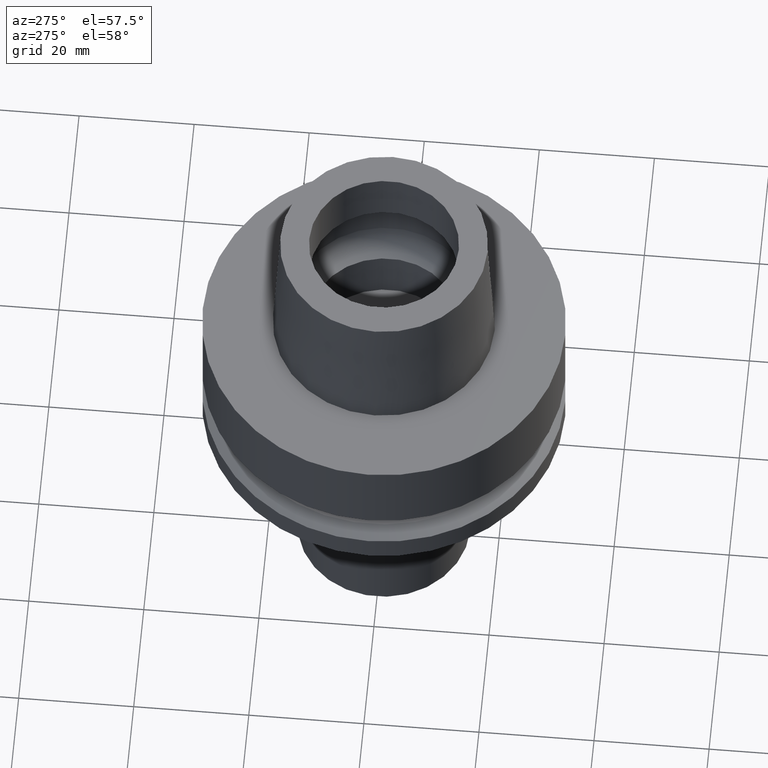
[diagram: clean part render]
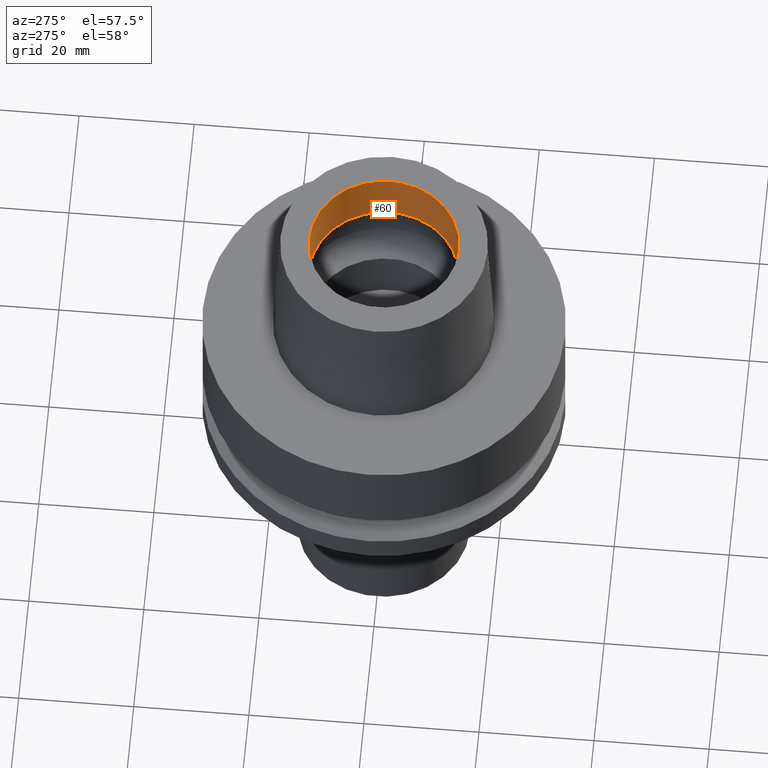
[diagram: same view with one face highlighted and labeled with its STEP entity id]
A machine part, auxiliary view. The second image highlights one B-rep face of the part: STEP entity #60.
In plain terms, the highlighted cylindrical surface (partial cylindrical patch) has radius 13 mm, axis along (0, 0, 1).
Its self-contained STEP definition (entity closure, byte-faithful):
#60 = ADVANCED_FACE ( 'NONE', ( #1481 ), #2337, .F. ) ;
#274 = AXIS2_PLACEMENT_3D ( 'NONE', #986, #1831, #2321 ) ;
#357 = VERTEX_POINT ( 'NONE', #1572 ) ;
#363 = DIRECTION ( 'NONE',  ( 0.0000000000000000000, 0.0000000000000000000, 1.000000000000000000 ) ) ;
#499 = CARTESIAN_POINT ( 'NONE',  ( 0.0000000000000000000, -13.00000000000000000, 14.99602540378000093 ) ) ;
#519 = DIRECTION ( 'NONE',  ( 0.0000000000000000000, 9.659541928455000240E-14, 1.000000000000000000 ) ) ;
#573 = VECTOR ( 'NONE', #2594, 1000.000000000000000 ) ;
#712 = AXIS2_PLACEMENT_3D ( 'NONE', #1941, #1687, #1700 ) ;
#761 = EDGE_CURVE ( 'NONE', #2257, #2307, #1383, .T. ) ;
#881 = CARTESIAN_POINT ( 'NONE',  ( 0.0000000000000000000, 13.00000000000000000, 14.99602540378000093 ) ) ;
#986 = CARTESIAN_POINT ( 'NONE',  ( 0.0000000000000000000, 0.0000000000000000000, 14.99602540378000093 ) ) ;
#1068 = EDGE_CURVE ( 'NONE', #357, #2307, #1295, .T. ) ;
#1118 = VERTEX_POINT ( 'NONE', #499 ) ;
#1140 = LINE ( 'NONE', #2011, #1720 ) ;
#1295 = LINE ( 'NONE', #881, #573 ) ;
#1383 = CIRCLE ( 'NONE', #2423, 13.00000000000000000 ) ;
#1413 = CARTESIAN_POINT ( 'NONE',  ( 0.0000000000000000000, -13.00000000000000000, 25.00000000000000000 ) ) ;
#1481 = FACE_OUTER_BOUND ( 'NONE', #1799, .T. ) ;
#1572 = CARTESIAN_POINT ( 'NONE',  ( 0.0000000000000000000, 13.00000000000000000, 14.99602540378000093 ) ) ;
#1687 = DIRECTION ( 'NONE',  ( 0.0000000000000000000, 0.0000000000000000000, 1.000000000000000000 ) ) ;
#1700 = DIRECTION ( 'NONE',  ( 0.0000000000000000000, 1.000000000000000000, 0.0000000000000000000 ) ) ;
#1720 = VECTOR ( 'NONE', #519, 1000.000000000000000 ) ;
#1799 = EDGE_LOOP ( 'NONE', ( #2509, #2775, #2741, #2172 ) ) ;
#1831 = DIRECTION ( 'NONE',  ( 0.0000000000000000000, 0.0000000000000000000, -1.000000000000000000 ) ) ;
#1941 = CARTESIAN_POINT ( 'NONE',  ( 0.0000000000000000000, 0.0000000000000000000, -62.46499999999999631 ) ) ;
#2011 = CARTESIAN_POINT ( 'NONE',  ( 0.0000000000000000000, -13.00000000000000000, 14.99602540378000093 ) ) ;
#2172 = ORIENTED_EDGE ( 'NONE', *, *, #1068, .F. ) ;
#2257 = VERTEX_POINT ( 'NONE', #1413 ) ;
#2279 = CARTESIAN_POINT ( 'NONE',  ( 0.0000000000000000000, 13.00000000000000000, 25.00000000000000000 ) ) ;
#2307 = VERTEX_POINT ( 'NONE', #2279 ) ;
#2321 = DIRECTION ( 'NONE',  ( 0.0000000000000000000, 1.000000000000000000, 0.0000000000000000000 ) ) ;
#2337 = CYLINDRICAL_SURFACE ( 'NONE', #712, 13.00000000000000000 ) ;
#2394 = EDGE_CURVE ( 'NONE', #357, #1118, #2485, .T. ) ;
#2423 = AXIS2_PLACEMENT_3D ( 'NONE', #2761, #363, #2778 ) ;
#2485 = CIRCLE ( 'NONE', #274, 13.00000000000000000 ) ;
#2509 = ORIENTED_EDGE ( 'NONE', *, *, #2394, .T. ) ;
#2594 = DIRECTION ( 'NONE',  ( 0.0000000000000000000, -9.659541928455000240E-14, 1.000000000000000000 ) ) ;
#2741 = ORIENTED_EDGE ( 'NONE', *, *, #761, .T. ) ;
#2761 = CARTESIAN_POINT ( 'NONE',  ( 0.0000000000000000000, 0.0000000000000000000, 25.00000000000000000 ) ) ;
#2769 = EDGE_CURVE ( 'NONE', #1118, #2257, #1140, .T. ) ;
#2775 = ORIENTED_EDGE ( 'NONE', *, *, #2769, .T. ) ;
#2778 = DIRECTION ( 'NONE',  ( 0.0000000000000000000, -1.000000000000000000, 0.0000000000000000000 ) ) ;